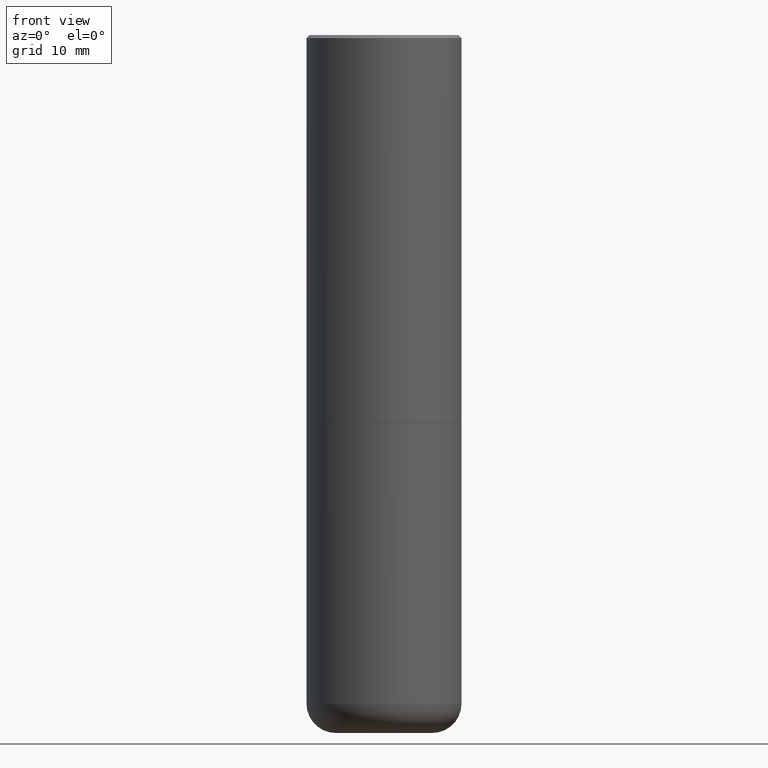
[diagram: clean part render]
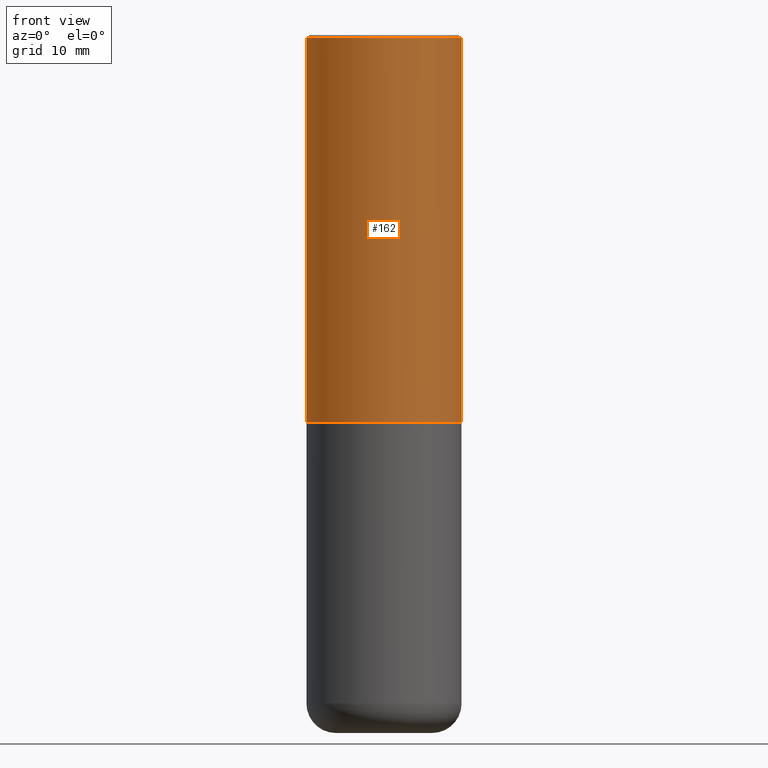
[diagram: same view with one face highlighted and labeled with its STEP entity id]
A machine part, front view. The second image highlights one B-rep face of the part: STEP entity #162.
In plain terms, the highlighted cylindrical surface (partial cylindrical patch) has radius 12.7 mm, axis along (-0, 0, 1).
Its self-contained STEP definition (entity closure, byte-faithful):
#11 = CYLINDRICAL_SURFACE ( 'NONE', #42, 0.5000000000000001110 ) ;
#27 = CARTESIAN_POINT ( 'NONE',  ( 0.5000000000000002220, -1.221669320461215845E-14, -2.499000000000000110 ) ) ;
#42 = AXIS2_PLACEMENT_3D ( 'NONE', #143, #364, #307 ) ;
#44 = CARTESIAN_POINT ( 'NONE',  ( 0.5000000000000001110, -3.491481338843134539E-15, 2.438088387897968457E-29 ) ) ;
#47 = ORIENTED_EDGE ( 'NONE', *, *, #286, .T. ) ;
#49 = FACE_OUTER_BOUND ( 'NONE', #210, .T. ) ;
#73 = VERTEX_POINT ( 'NONE', #101 ) ;
#75 = CARTESIAN_POINT ( 'NONE',  ( -0.5000000000000001110, 3.421651712066270452E-15, -0.02000000000000010797 ) ) ;
#89 = EDGE_CURVE ( 'NONE', #289, #392, #209, .T. ) ;
#101 = CARTESIAN_POINT ( 'NONE',  ( 0.5000000000000001110, -3.500078625662629868E-15, -0.02000000000000010797 ) ) ;
#102 = LINE ( 'NONE', #44, #284 ) ;
#122 = CARTESIAN_POINT ( 'NONE',  ( 4.890937612370299433E-31, -6.982962677686328587E-17, -0.02000000000000010797 ) ) ;
#124 = CARTESIAN_POINT ( 'NONE',  ( -0.5000000000000001110, 3.552713678800501718E-15, -2.459467545127453732E-29 ) ) ;
#130 = DIRECTION ( 'NONE',  ( -2.445468806185136877E-29, 3.491481338843145188E-15, 1.000000000000000000 ) ) ;
#140 = DIRECTION ( 'NONE',  ( 1.000000000000000000, -6.982962677686265922E-15, 0.000000000000000000 ) ) ;
#143 = CARTESIAN_POINT ( 'NONE',  ( 0.000000000000000000, 0.000000000000000000, 0.000000000000000000 ) ) ;
#162 = ADVANCED_FACE ( 'NONE', ( #49 ), #11, .T. ) ;
#168 = DIRECTION ( 'NONE',  ( -2.445468806185136877E-29, 3.491481338843145188E-15, 1.000000000000000000 ) ) ;
#177 = CIRCLE ( 'NONE', #413, 0.5000000000000001110 ) ;
#178 = VECTOR ( 'NONE', #130, 39.37007874015748143 ) ;
#196 = ORIENTED_EDGE ( 'NONE', *, *, #338, .F. ) ;
#209 = CIRCLE ( 'NONE', #347, 0.5000000000000002220 ) ;
#210 = EDGE_LOOP ( 'NONE', ( #276, #314, #47, #196 ) ) ;
#229 = DIRECTION ( 'NONE',  ( -2.445468806185136597E-29, 3.491481338843145583E-15, 1.000000000000000000 ) ) ;
#258 = DIRECTION ( 'NONE',  ( 1.000000000000000000, -6.982962677686269866E-15, 0.000000000000000000 ) ) ;
#261 = EDGE_CURVE ( 'NONE', #289, #344, #415, .T. ) ;
#276 = ORIENTED_EDGE ( 'NONE', *, *, #261, .F. ) ;
#284 = VECTOR ( 'NONE', #168, 39.37007874015748143 ) ;
#286 = EDGE_CURVE ( 'NONE', #392, #73, #102, .T. ) ;
#289 = VERTEX_POINT ( 'NONE', #357 ) ;
#307 = DIRECTION ( 'NONE',  ( 1.000000000000000000, -6.982962677686267499E-15, 4.876176775795935793E-29 ) ) ;
#314 = ORIENTED_EDGE ( 'NONE', *, *, #89, .T. ) ;
#338 = EDGE_CURVE ( 'NONE', #344, #73, #177, .T. ) ;
#344 = VERTEX_POINT ( 'NONE', #75 ) ;
#347 = AXIS2_PLACEMENT_3D ( 'NONE', #356, #229, #258 ) ;
#356 = CARTESIAN_POINT ( 'NONE',  ( 6.111226546656657010E-29, -8.725211865769021935E-15, -2.499000000000000110 ) ) ;
#357 = CARTESIAN_POINT ( 'NONE',  ( -0.5000000000000002220, -8.448070674724393209E-16, -2.499000000000000110 ) ) ;
#360 = DIRECTION ( 'NONE',  ( -2.445468806185136597E-29, 3.491481338843145583E-15, 1.000000000000000000 ) ) ;
#364 = DIRECTION ( 'NONE',  ( -2.445468806185136597E-29, 3.491481338843145583E-15, 1.000000000000000000 ) ) ;
#392 = VERTEX_POINT ( 'NONE', #27 ) ;
#413 = AXIS2_PLACEMENT_3D ( 'NONE', #122, #360, #140 ) ;
#415 = LINE ( 'NONE', #124, #178 ) ;